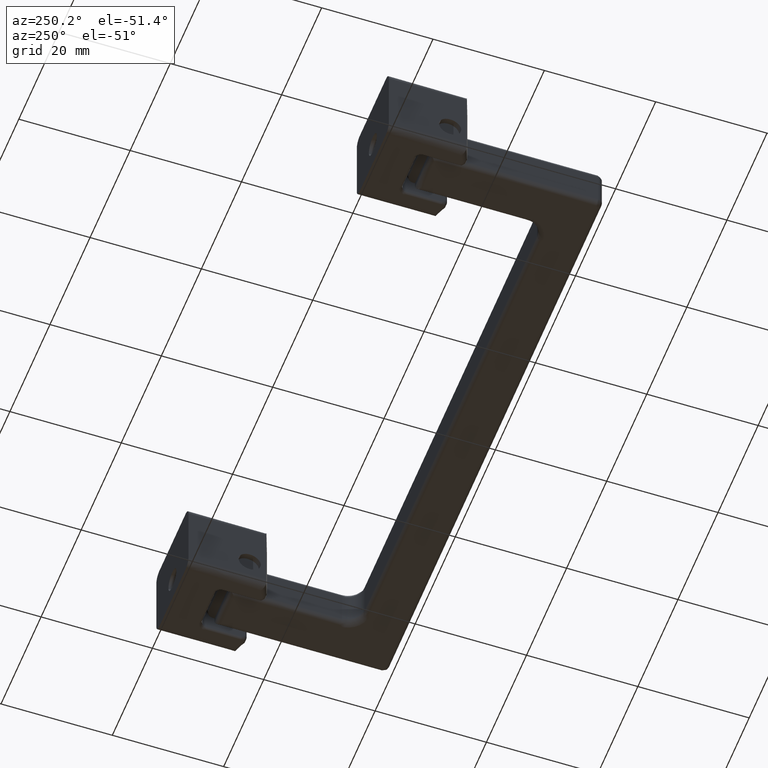
[diagram: clean part render]
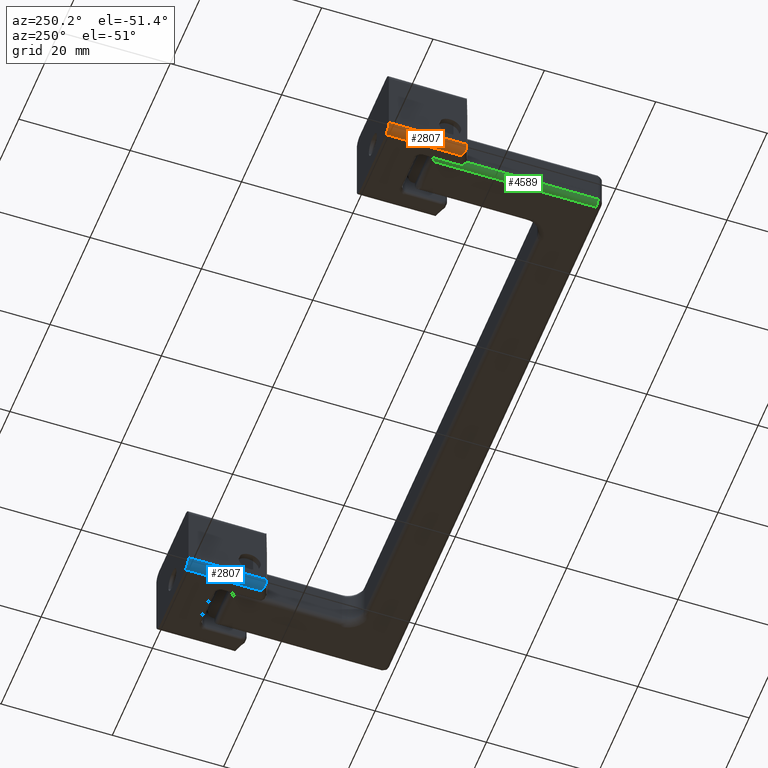
[diagram: same view with three faces highlighted in distinct colors, each labeled with its STEP entity id]
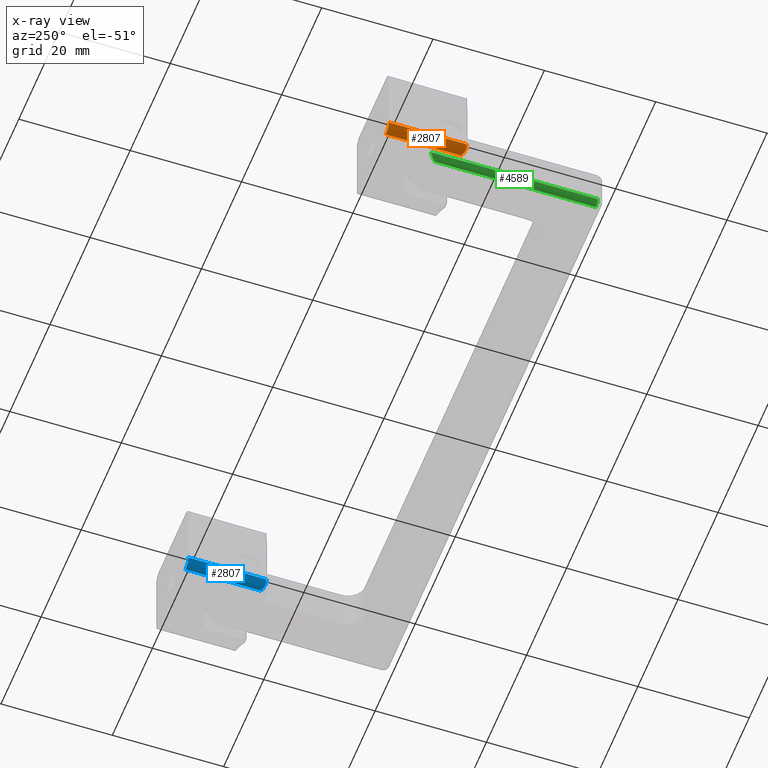
[diagram: x-ray of the same camera — body ghosted, the three highlighted faces saturated]
A machine part, auxiliary view with three faces highlighted in distinct colors.
The next image is the same camera in x-ray (body ghosted, the three faces saturated) — at least one of them is partly hidden behind the body in this view.
Their STEP definitions:

[orange] entity #2807 — the highlighted face is a freeform B-spline surface patch.
#1715=CARTESIAN_POINT('',(33.500000000000000,-4.999999999999890,13.522967038573100));
#1716=VERTEX_POINT('',#1715);
#1717=CARTESIAN_POINT('',(32.085786437626908,-3.999999999999890,14.034314575050759));
#1718=VERTEX_POINT('',#1717);
#1719=CARTESIAN_POINT('',(33.500000000000000,-4.999999999999861,13.522967038573100));
#1720=CARTESIAN_POINT('',(33.481851441914337,-4.999999999999862,13.531667319904249));
#1721=CARTESIAN_POINT('',(33.463382689461440,-4.999665085777703,13.540521151777270));
#1722=CARTESIAN_POINT('',(33.426735948347378,-4.998321919904786,13.558081253717139));
#1723=CARTESIAN_POINT('',(33.408430316380837,-4.997314696909261,13.566848743156640));
#1724=CARTESIAN_POINT('',(33.353561917674931,-4.993285345203916,13.593103549388180));
#1725=CARTESIAN_POINT('',(33.316992094826347,-4.989248593822868,13.610569779147109));
#1726=CARTESIAN_POINT('',(33.207818632957782,-4.973106621732643,13.662514298800950));
#1727=CARTESIAN_POINT('',(33.136236366657151,-4.957085275772721,13.696310770450079));
#1728=CARTESIAN_POINT('',(32.995280714875989,-4.914453931749062,13.761779712327840));
#1729=CARTESIAN_POINT('',(32.925908037114723,-4.887850538950785,13.793458011709969));
#1730=CARTESIAN_POINT('',(32.789330580919938,-4.823124966546950,13.853996485796980));
#1731=CARTESIAN_POINT('',(32.723334674155652,-4.785549711945933,13.882317156855940));
#1732=CARTESIAN_POINT('',(32.628307919275407,-4.721316784854193,13.921043509635361));
#1733=CARTESIAN_POINT('',(32.597266104471842,-4.698573440407900,13.933336465094190));
#1734=CARTESIAN_POINT('',(32.536482142589442,-4.650278277912626,13.956535494633300));
#1735=CARTESIAN_POINT('',(32.506618322889928,-4.624608075499610,13.967482983251490));
#1736=CARTESIAN_POINT('',(32.420166086083832,-4.544107579680111,13.997552676467491));
#1737=CARTESIAN_POINT('',(32.366667657783438,-4.485881662496873,14.013969287705869));
#1738=CARTESIAN_POINT('',(32.292816683915802,-4.391240514091855,14.031983585426239));
#1739=CARTESIAN_POINT('',(32.269175381659032,-4.358321357219979,14.036893109580260));
#1740=CARTESIAN_POINT('',(32.224593983481682,-4.290559476828289,14.044092884755020));
#1741=CARTESIAN_POINT('',(32.203786152256363,-4.255944856069738,14.046370752161900));
#1742=CARTESIAN_POINT('',(32.145724938543417,-4.149946856227701,14.048968304548930));
#1743=CARTESIAN_POINT('',(32.112805909315547,-4.076422606620302,14.045122363726209));
#1744=CARTESIAN_POINT('',(32.085786437626908,-3.999999999999885,14.034314575050759));
#1745=B_SPLINE_CURVE_WITH_KNOTS('',3,(#1719,#1720,#1721,#1722,#1723,#1724,#1725,#1726,#1727,#1728,#1729,#1730,#1731,#1732,#1733,#1734,#1735,#1736,#1737,#1738,#1739,#1740,#1741,#1742,#1743,#1744),.UNSPECIFIED.,.F.,.U.,(4,2,2,2,2,2,2,2,2,2,2,2,4),(0.0,0.031250000000004,0.062500000000008,0.125000000000005,0.250000000000009,0.375000000000013,0.500000000000017,0.562500000000016,0.625000000000014,0.750000000000010,0.812500000000009,0.875000000000008,1.0),.UNSPECIFIED.);
#1746=EDGE_CURVE('',#1716,#1718,#1745,.T.);
#2748=CARTESIAN_POINT('',(32.000514012536662,-3.460734577538025,14.398786310112561));
#2749=CARTESIAN_POINT('',(32.000514012536662,-3.460734577538025,-0.359969657752815));
#2750=CARTESIAN_POINT('',(31.957261609750603,-5.112477200831926,14.398786310112554));
#2751=CARTESIAN_POINT('',(31.957261609750603,-5.112477200831926,-0.359969657752815));
#2752=CARTESIAN_POINT('',(33.605480113438993,-4.996286719071055,14.398786310112563));
#2753=CARTESIAN_POINT('',(33.605480113438993,-4.996286719071055,-0.359969657752815));
#2761=(BOUNDED_SURFACE()B_SPLINE_SURFACE(1,2,((#2748,#2750,#2752),(#2749,#2751,#2753)),.UNSPECIFIED.,.F.,.F.,.U.)B_SPLINE_SURFACE_WITH_KNOTS((2,2),(3,3),(0.0,14.758755967865371),(0.0,2.656713516132572),.UNSPECIFIED.)GEOMETRIC_REPRESENTATION_ITEM()RATIONAL_B_SPLINE_SURFACE(((1.0,0.670944223154768,0.996392648609106),(1.0,0.670944223154768,0.996392648609106)))REPRESENTATION_ITEM('')SURFACE());
#2762=CARTESIAN_POINT('',(33.500000000000000,-4.999999999999890,0.0));
#2763=VERTEX_POINT('',#2762);
#2764=CARTESIAN_POINT('',(33.500000000000000,-4.999999999999890,13.522967038573100));
#2765=CARTESIAN_POINT('',(33.500000000000000,-4.999999999999890,0.0));
#2766=QUASI_UNIFORM_CURVE('',1,(#2764,#2765),.UNSPECIFIED.,.F.,.U.);
#2767=EDGE_CURVE('',#1716,#2763,#2766,.T.);
#2768=ORIENTED_EDGE('',*,*,#2767,.F.);
#2769=ORIENTED_EDGE('',*,*,#1746,.T.);
#2770=CARTESIAN_POINT('',(32.0,-3.499999999999835,14.0));
#2771=VERTEX_POINT('',#2770);
#2772=CARTESIAN_POINT('',(32.0,-3.499999999999835,14.0));
#2773=CARTESIAN_POINT('',(32.0,-3.757359312880580,14.000000000000002));
#2774=CARTESIAN_POINT('',(32.085786437626929,-3.999999999999891,14.034314575050770));
#2782=(BOUNDED_CURVE()B_SPLINE_CURVE(2,(#2772,#2773,#2774),.UNSPECIFIED.,.F.,.U.)CURVE()GEOMETRIC_REPRESENTATION_ITEM()QUASI_UNIFORM_CURVE()RATIONAL_B_SPLINE_CURVE((1.0,0.985598559653496,1.0))REPRESENTATION_ITEM(''));
#2783=EDGE_CURVE('',#2771,#1718,#2782,.T.);
#2784=ORIENTED_EDGE('',*,*,#2783,.F.);
#2785=CARTESIAN_POINT('',(32.0,-3.499999999999835,0.0));
#2786=VERTEX_POINT('',#2785);
#2787=CARTESIAN_POINT('',(32.0,-3.499999999999835,0.0));
#2788=CARTESIAN_POINT('',(32.0,-3.499999999999835,14.0));
#2789=QUASI_UNIFORM_CURVE('',1,(#2787,#2788),.UNSPECIFIED.,.F.,.U.);
#2790=EDGE_CURVE('',#2786,#2771,#2789,.T.);
#2791=ORIENTED_EDGE('',*,*,#2790,.F.);
#2792=CARTESIAN_POINT('',(33.500000000000000,-4.999999999999836,0.0));
#2793=CARTESIAN_POINT('',(31.999999999999996,-4.999999999999836,0.0));
#2794=CARTESIAN_POINT('',(32.0,-3.499999999999835,0.0));
#2802=(BOUNDED_CURVE()B_SPLINE_CURVE(2,(#2792,#2793,#2794),.UNSPECIFIED.,.F.,.U.)CURVE()GEOMETRIC_REPRESENTATION_ITEM()QUASI_UNIFORM_CURVE()RATIONAL_B_SPLINE_CURVE((1.0,0.707106781186548,1.0))REPRESENTATION_ITEM(''));
#2803=EDGE_CURVE('',#2763,#2786,#2802,.T.);
#2804=ORIENTED_EDGE('',*,*,#2803,.F.);
#2805=EDGE_LOOP('',(#2768,#2769,#2784,#2791,#2804));
#2806=FACE_OUTER_BOUND('',#2805,.T.);
#2807=ADVANCED_FACE('',(#2806),#2761,.T.);

[blue] entity #2807 — the highlighted face is a freeform B-spline surface patch.
#1715=CARTESIAN_POINT('',(33.500000000000000,-4.999999999999890,13.522967038573100));
#1716=VERTEX_POINT('',#1715);
#1717=CARTESIAN_POINT('',(32.085786437626908,-3.999999999999890,14.034314575050759));
#1718=VERTEX_POINT('',#1717);
#1719=CARTESIAN_POINT('',(33.500000000000000,-4.999999999999861,13.522967038573100));
#1720=CARTESIAN_POINT('',(33.481851441914337,-4.999999999999862,13.531667319904249));
#1721=CARTESIAN_POINT('',(33.463382689461440,-4.999665085777703,13.540521151777270));
#1722=CARTESIAN_POINT('',(33.426735948347378,-4.998321919904786,13.558081253717139));
#1723=CARTESIAN_POINT('',(33.408430316380837,-4.997314696909261,13.566848743156640));
#1724=CARTESIAN_POINT('',(33.353561917674931,-4.993285345203916,13.593103549388180));
#1725=CARTESIAN_POINT('',(33.316992094826347,-4.989248593822868,13.610569779147109));
#1726=CARTESIAN_POINT('',(33.207818632957782,-4.973106621732643,13.662514298800950));
#1727=CARTESIAN_POINT('',(33.136236366657151,-4.957085275772721,13.696310770450079));
#1728=CARTESIAN_POINT('',(32.995280714875989,-4.914453931749062,13.761779712327840));
#1729=CARTESIAN_POINT('',(32.925908037114723,-4.887850538950785,13.793458011709969));
#1730=CARTESIAN_POINT('',(32.789330580919938,-4.823124966546950,13.853996485796980));
#1731=CARTESIAN_POINT('',(32.723334674155652,-4.785549711945933,13.882317156855940));
#1732=CARTESIAN_POINT('',(32.628307919275407,-4.721316784854193,13.921043509635361));
#1733=CARTESIAN_POINT('',(32.597266104471842,-4.698573440407900,13.933336465094190));
#1734=CARTESIAN_POINT('',(32.536482142589442,-4.650278277912626,13.956535494633300));
#1735=CARTESIAN_POINT('',(32.506618322889928,-4.624608075499610,13.967482983251490));
#1736=CARTESIAN_POINT('',(32.420166086083832,-4.544107579680111,13.997552676467491));
#1737=CARTESIAN_POINT('',(32.366667657783438,-4.485881662496873,14.013969287705869));
#1738=CARTESIAN_POINT('',(32.292816683915802,-4.391240514091855,14.031983585426239));
#1739=CARTESIAN_POINT('',(32.269175381659032,-4.358321357219979,14.036893109580260));
#1740=CARTESIAN_POINT('',(32.224593983481682,-4.290559476828289,14.044092884755020));
#1741=CARTESIAN_POINT('',(32.203786152256363,-4.255944856069738,14.046370752161900));
#1742=CARTESIAN_POINT('',(32.145724938543417,-4.149946856227701,14.048968304548930));
#1743=CARTESIAN_POINT('',(32.112805909315547,-4.076422606620302,14.045122363726209));
#1744=CARTESIAN_POINT('',(32.085786437626908,-3.999999999999885,14.034314575050759));
#1745=B_SPLINE_CURVE_WITH_KNOTS('',3,(#1719,#1720,#1721,#1722,#1723,#1724,#1725,#1726,#1727,#1728,#1729,#1730,#1731,#1732,#1733,#1734,#1735,#1736,#1737,#1738,#1739,#1740,#1741,#1742,#1743,#1744),.UNSPECIFIED.,.F.,.U.,(4,2,2,2,2,2,2,2,2,2,2,2,4),(0.0,0.031250000000004,0.062500000000008,0.125000000000005,0.250000000000009,0.375000000000013,0.500000000000017,0.562500000000016,0.625000000000014,0.750000000000010,0.812500000000009,0.875000000000008,1.0),.UNSPECIFIED.);
#1746=EDGE_CURVE('',#1716,#1718,#1745,.T.);
#2748=CARTESIAN_POINT('',(32.000514012536662,-3.460734577538025,14.398786310112561));
#2749=CARTESIAN_POINT('',(32.000514012536662,-3.460734577538025,-0.359969657752815));
#2750=CARTESIAN_POINT('',(31.957261609750603,-5.112477200831926,14.398786310112554));
#2751=CARTESIAN_POINT('',(31.957261609750603,-5.112477200831926,-0.359969657752815));
#2752=CARTESIAN_POINT('',(33.605480113438993,-4.996286719071055,14.398786310112563));
#2753=CARTESIAN_POINT('',(33.605480113438993,-4.996286719071055,-0.359969657752815));
#2761=(BOUNDED_SURFACE()B_SPLINE_SURFACE(1,2,((#2748,#2750,#2752),(#2749,#2751,#2753)),.UNSPECIFIED.,.F.,.F.,.U.)B_SPLINE_SURFACE_WITH_KNOTS((2,2),(3,3),(0.0,14.758755967865371),(0.0,2.656713516132572),.UNSPECIFIED.)GEOMETRIC_REPRESENTATION_ITEM()RATIONAL_B_SPLINE_SURFACE(((1.0,0.670944223154768,0.996392648609106),(1.0,0.670944223154768,0.996392648609106)))REPRESENTATION_ITEM('')SURFACE());
#2762=CARTESIAN_POINT('',(33.500000000000000,-4.999999999999890,0.0));
#2763=VERTEX_POINT('',#2762);
#2764=CARTESIAN_POINT('',(33.500000000000000,-4.999999999999890,13.522967038573100));
#2765=CARTESIAN_POINT('',(33.500000000000000,-4.999999999999890,0.0));
#2766=QUASI_UNIFORM_CURVE('',1,(#2764,#2765),.UNSPECIFIED.,.F.,.U.);
#2767=EDGE_CURVE('',#1716,#2763,#2766,.T.);
#2768=ORIENTED_EDGE('',*,*,#2767,.F.);
#2769=ORIENTED_EDGE('',*,*,#1746,.T.);
#2770=CARTESIAN_POINT('',(32.0,-3.499999999999835,14.0));
#2771=VERTEX_POINT('',#2770);
#2772=CARTESIAN_POINT('',(32.0,-3.499999999999835,14.0));
#2773=CARTESIAN_POINT('',(32.0,-3.757359312880580,14.000000000000002));
#2774=CARTESIAN_POINT('',(32.085786437626929,-3.999999999999891,14.034314575050770));
#2782=(BOUNDED_CURVE()B_SPLINE_CURVE(2,(#2772,#2773,#2774),.UNSPECIFIED.,.F.,.U.)CURVE()GEOMETRIC_REPRESENTATION_ITEM()QUASI_UNIFORM_CURVE()RATIONAL_B_SPLINE_CURVE((1.0,0.985598559653496,1.0))REPRESENTATION_ITEM(''));
#2783=EDGE_CURVE('',#2771,#1718,#2782,.T.);
#2784=ORIENTED_EDGE('',*,*,#2783,.F.);
#2785=CARTESIAN_POINT('',(32.0,-3.499999999999835,0.0));
#2786=VERTEX_POINT('',#2785);
#2787=CARTESIAN_POINT('',(32.0,-3.499999999999835,0.0));
#2788=CARTESIAN_POINT('',(32.0,-3.499999999999835,14.0));
#2789=QUASI_UNIFORM_CURVE('',1,(#2787,#2788),.UNSPECIFIED.,.F.,.U.);
#2790=EDGE_CURVE('',#2786,#2771,#2789,.T.);
#2791=ORIENTED_EDGE('',*,*,#2790,.F.);
#2792=CARTESIAN_POINT('',(33.500000000000000,-4.999999999999836,0.0));
#2793=CARTESIAN_POINT('',(31.999999999999996,-4.999999999999836,0.0));
#2794=CARTESIAN_POINT('',(32.0,-3.499999999999835,0.0));
#2802=(BOUNDED_CURVE()B_SPLINE_CURVE(2,(#2792,#2793,#2794),.UNSPECIFIED.,.F.,.U.)CURVE()GEOMETRIC_REPRESENTATION_ITEM()QUASI_UNIFORM_CURVE()RATIONAL_B_SPLINE_CURVE((1.0,0.707106781186548,1.0))REPRESENTATION_ITEM(''));
#2803=EDGE_CURVE('',#2763,#2786,#2802,.T.);
#2804=ORIENTED_EDGE('',*,*,#2803,.F.);
#2805=EDGE_LOOP('',(#2768,#2769,#2784,#2791,#2804));
#2806=FACE_OUTER_BOUND('',#2805,.T.);
#2807=ADVANCED_FACE('',(#2806),#2761,.T.);

[green] entity #4589 — the highlighted face is a freeform B-spline surface patch.
#4370=CARTESIAN_POINT('',(-53.0,-4.0,39.0));
#4371=VERTEX_POINT('',#4370);
#4468=CARTESIAN_POINT('',(-54.0,-3.0,39.0));
#4469=VERTEX_POINT('',#4468);
#4483=CARTESIAN_POINT('',(-54.0,-3.0,39.0));
#4484=CARTESIAN_POINT('',(-54.0,-4.000000000000000,39.000000000000007));
#4485=CARTESIAN_POINT('',(-53.0,-4.0,39.0));
#4493=(BOUNDED_CURVE()B_SPLINE_CURVE(2,(#4483,#4484,#4485),.UNSPECIFIED.,.F.,.U.)CURVE()GEOMETRIC_REPRESENTATION_ITEM()QUASI_UNIFORM_CURVE()RATIONAL_B_SPLINE_CURVE((1.0,0.707106781186548,1.0))REPRESENTATION_ITEM(''));
#4494=EDGE_CURVE('',#4469,#4371,#4493,.T.);
#4545=CARTESIAN_POINT('',(-52.956380612634661,-3.999048221581858,8.250000000000000));
#4546=CARTESIAN_POINT('',(-52.956380612634661,-3.999048221581858,39.768750000000011));
#4547=CARTESIAN_POINT('',(-54.076060264459038,-4.047934490935981,8.250000000000000));
#4548=CARTESIAN_POINT('',(-54.076060264459038,-4.047934490935981,39.768750000000011));
#4549=CARTESIAN_POINT('',(-53.997542913231911,-2.929941907956478,8.250000000000000));
#4550=CARTESIAN_POINT('',(-53.997542913231911,-2.929941907956478,39.768750000000011));
#4558=(BOUNDED_SURFACE()B_SPLINE_SURFACE(1,2,((#4545,#4547,#4549),(#4546,#4548,#4550)),.UNSPECIFIED.,.F.,.F.,.U.)B_SPLINE_SURFACE_WITH_KNOTS((2,2),(3,3),(0.0,31.518750000000011),(0.0,0.994386594966985),.UNSPECIFIED.)GEOMETRIC_REPRESENTATION_ITEM()RATIONAL_B_SPLINE_SURFACE(((1.0,0.664513898535122,0.996233561259061),(1.0,0.664513898535122,0.996233561259061)))REPRESENTATION_ITEM('')SURFACE());
#4559=CARTESIAN_POINT('',(-54.0,-3.0,9.0));
#4560=VERTEX_POINT('',#4559);
#4561=CARTESIAN_POINT('',(-53.0,-4.0,10.0));
#4562=VERTEX_POINT('',#4561);
#4563=CARTESIAN_POINT('',(-54.0,-3.0,9.000000000000002));
#4564=CARTESIAN_POINT('',(-54.0,-4.0,9.000000000000002));
#4565=CARTESIAN_POINT('',(-53.0,-4.0,10.0));
#4573=(BOUNDED_CURVE()B_SPLINE_CURVE(2,(#4563,#4564,#4565),.UNSPECIFIED.,.F.,.U.)CURVE()GEOMETRIC_REPRESENTATION_ITEM()QUASI_UNIFORM_CURVE()RATIONAL_B_SPLINE_CURVE((1.0,0.707106781186548,1.0))REPRESENTATION_ITEM(''));
#4574=EDGE_CURVE('',#4560,#4562,#4573,.T.);
#4575=ORIENTED_EDGE('',*,*,#4574,.T.);
#4576=CARTESIAN_POINT('',(-53.0,-4.0,39.0));
#4577=CARTESIAN_POINT('',(-53.0,-4.0,10.0));
#4578=QUASI_UNIFORM_CURVE('',1,(#4576,#4577),.UNSPECIFIED.,.F.,.U.);
#4579=EDGE_CURVE('',#4371,#4562,#4578,.T.);
#4580=ORIENTED_EDGE('',*,*,#4579,.F.);
#4581=ORIENTED_EDGE('',*,*,#4494,.F.);
#4582=CARTESIAN_POINT('',(-54.0,-3.0,9.0));
#4583=CARTESIAN_POINT('',(-54.0,-3.0,39.0));
#4584=QUASI_UNIFORM_CURVE('',1,(#4582,#4583),.UNSPECIFIED.,.F.,.U.);
#4585=EDGE_CURVE('',#4560,#4469,#4584,.T.);
#4586=ORIENTED_EDGE('',*,*,#4585,.F.);
#4587=EDGE_LOOP('',(#4575,#4580,#4581,#4586));
#4588=FACE_OUTER_BOUND('',#4587,.T.);
#4589=ADVANCED_FACE('',(#4588),#4558,.T.);